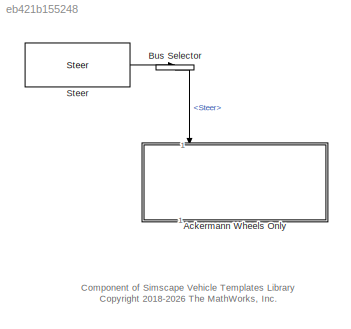
MODEL slx_eb421b155248
KIND library
CONFIG SolverName = VariableStepAuto
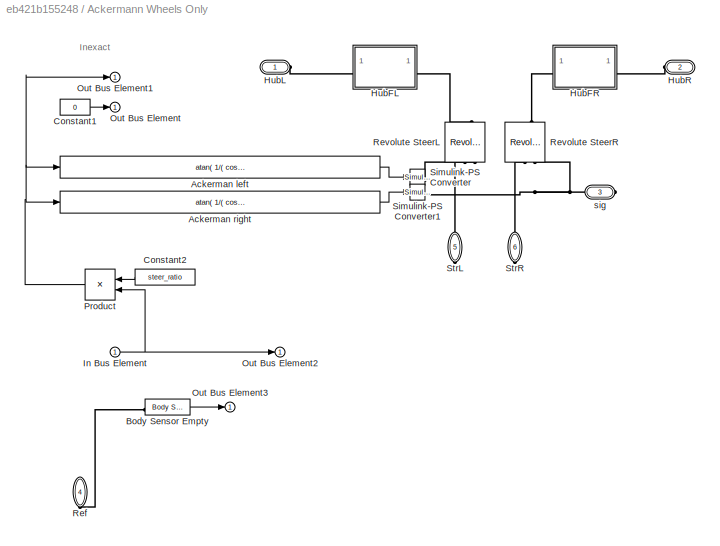
BLOCK [SubSystem] Ackermann Wheels Only
  NameLocation = left
  VariantControl = Ackermann
BLOCK [Fcn] Ackermann Wheels Only/Ackerman left
  Expr = atan( 1/( cos(u+eps)/sin(u+eps) - yTrack/(2*xwheelbase) ) )
  NameLocation = top
BLOCK [Fcn] Ackermann Wheels Only/Ackerman right
  Expr = atan( 1/( cos(u+eps)/sin(u+eps) + yTrack/(2*xwheelbase) ) )
BLOCK [Reference] Ackermann Wheels Only/Body Sensor Empty  REF=sm_car_lib/Sensors/Body Sensor Empty  (lib defined in slx_05426f0848b6, slx_5dc2867fb1c9)
  SourceBlock = sm_car_lib/Sensors/Body Sensor Empty
BLOCK [Constant] Ackermann Wheels Only/Constant1
  Value = 0
BLOCK [Constant] Ackermann Wheels Only/Constant2
  Value = steer_ratio
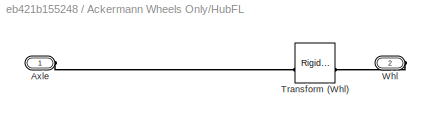
BLOCK [SubSystem] Ackermann Wheels Only/HubFL
BLOCK [PMIOPort] Ackermann Wheels Only/HubFL/Axle
  Side = Left
BLOCK [Reference] Ackermann Wheels Only/HubFL/Transform (Whl)  REF=sm_lib/Frames and
Transforms/Rigid
Transform
  SourceBlock = sm_lib/Frames and\nTransforms/Rigid\nTransform
  SourceType = Rigid\nTransform
BLOCK [PMIOPort] Ackermann Wheels Only/HubFL/Whl
  Port = 2
  Side = Right
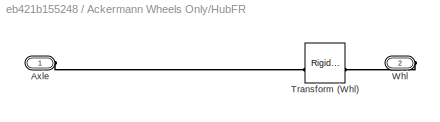
BLOCK [SubSystem] Ackermann Wheels Only/HubFR
BLOCK [PMIOPort] Ackermann Wheels Only/HubFR/Axle
  Side = Left
BLOCK [Reference] Ackermann Wheels Only/HubFR/Transform (Whl)  REF=sm_lib/Frames and
Transforms/Rigid
Transform
  SourceBlock = sm_lib/Frames and\nTransforms/Rigid\nTransform
  SourceType = Rigid\nTransform
BLOCK [PMIOPort] Ackermann Wheels Only/HubFR/Whl
  Port = 2
  Side = Right
BLOCK [PMIOPort] Ackermann Wheels Only/HubL
  Side = Left
BLOCK [PMIOPort] Ackermann Wheels Only/HubR
  Port = 2
  Side = Left
BLOCK [Inport] Ackermann Wheels Only/In Bus Element
BLOCK [Outport] Ackermann Wheels Only/Out Bus Element
  VectorParamsAs1DForOutWhenUnconnected = off
BLOCK [Outport] Ackermann Wheels Only/Out Bus Element1
  VectorParamsAs1DForOutWhenUnconnected = off
BLOCK [Outport] Ackermann Wheels Only/Out Bus Element2
  VectorParamsAs1DForOutWhenUnconnected = off
BLOCK [Outport] Ackermann Wheels Only/Out Bus Element3
  VectorParamsAs1DForOutWhenUnconnected = off
BLOCK [Product] Ackermann Wheels Only/Product
BLOCK [PMIOPort] Ackermann Wheels Only/Ref
  NameLocation = right
  Port = 4
  Side = Right
BLOCK [Reference] Ackermann Wheels Only/Revolute SteerL  REF=sm_lib/Joints/Revolute Joint
  NameLocation = left
  SourceBlock = sm_lib/Joints/Revolute Joint
  SourceType = Revolute Joint
BLOCK [Reference] Ackermann Wheels Only/Revolute SteerR  REF=sm_lib/Joints/Revolute Joint
  NameLocation = right
  SourceBlock = sm_lib/Joints/Revolute Joint
  SourceType = Revolute Joint
BLOCK [Reference] Ackermann Wheels Only/Simulink-PS Converter  REF=nesl_utility/Simulink-PS
Converter
  SourceBlock = nesl_utility/Simulink-PS\nConverter
  SourceType = Simulink-PS\nConverter
BLOCK [Reference] Ackermann Wheels Only/Simulink-PS Converter1  REF=nesl_utility/Simulink-PS
Converter
  SourceBlock = nesl_utility/Simulink-PS\nConverter
  SourceType = Simulink-PS\nConverter
BLOCK [PMIOPort] Ackermann Wheels Only/StrL
  NameLocation = right
  Port = 5
  Side = Right
BLOCK [PMIOPort] Ackermann Wheels Only/StrR
  NameLocation = right
  Port = 6
  Side = Right
BLOCK [PMIOPort] Ackermann Wheels Only/sig
  Port = 3
  Side = Right
BLOCK [BusSelector] Bus Selector
  NameLocation = left
  OutputSignals = Steer
BLOCK [Reference] Steer  REF=sm_car_lib/Control/Steer  (lib defined in slx_05426f0848b6, slx_5dc2867fb1c9)
  SourceBlock = sm_car_lib/Control/Steer
ANNOTATION (root): Component of Simscape Vehicle Templates Library <copyright redacted>
ANNOTATION Ackermann Wheels Only: Inexact
LINE Bus Selector:1 -> Ackermann Wheels Only:1
LINE Steer:1 -> Bus Selector:1
